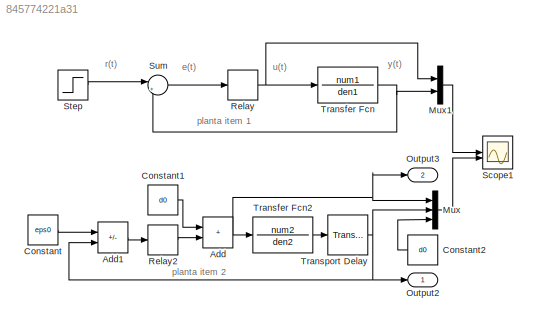
MODEL slx_845774221a31
KIND model
CONFIG AbsTol = auto
CONFIG EnableMultiTasking = off
CONFIG FixedStep = auto
CONFIG MaxStep = auto
CONFIG MinStep = auto
CONFIG RelTol = 1e-10
CONFIG SampleTimeConstraint = Unconstrained
CONFIG SolverName = VariableStepAuto
CONFIG StartTime = 0.0
CONFIG StopTime = 30
BLOCK [Sum] Add
  IconShape = rectangular
BLOCK [Sum] Add1
  IconShape = rectangular
  Inputs = +-
BLOCK [Constant] Constant
  Value = eps0
BLOCK [Constant] Constant1
  Value = d0
BLOCK [Constant] Constant2
  Value = d0
BLOCK [Mux] Mux
  DisplayOption = bar
  Inputs = 3
BLOCK [Mux] Mux1
  DisplayOption = bar
  Inputs = 2
BLOCK [Outport] Output2
BLOCK [Outport] Output3
  Port = 2
BLOCK [Relay] Relay
  OffOutputValue = -d1
  OffSwitchValue = eps1
  OnOutputValue = d1
  OnSwitchValue = eps1
BLOCK [Relay] Relay2
  OffOutputValue = -d2
  OffSwitchValue = eps2
  OnOutputValue = d2
  OnSwitchValue = eps2
BLOCK [Scope] Scope1
  Floating = off
  NumInputPorts = 2
  ScopeSpecificationString = Simulink.scopes.TimeScopeBlockCfg('CurrentConfiguration', extmgr.ConfigurationSet(extmgr.Configuration('Core','General UI',true),extmgr.Configuration('Core','Source UI',true),extmgr.Configuration('Sources','WiredSimulink',true,'DataLoggingVariableName','ScopeData1'),extmgr.Configuration('Visuals','Time Domain',true,'SerializedDisplays',{struct('MinYLimReal','-2.62043','MaxYLimReal','3.93526','YLab...<+2045ch>
BLOCK [Step] Step
  Before = -1
  SampleTime = 1
BLOCK [Sum] Sum
  Inputs = |+-
BLOCK [TransferFcn] Transfer Fcn
  Denominator = den1
  Numerator = num1
BLOCK [TransferFcn] Transfer Fcn2
  Denominator = den2
  Numerator = num2
BLOCK [TransportDelay] Transport Delay
  DelayTime = 0.1
ANNOTATION (root): e(t)
ANNOTATION (root): planta item 1
ANNOTATION (root): planta item 2
ANNOTATION (root): r(t)
ANNOTATION (root): u(t)
ANNOTATION (root): y(t)
LINE Add1:1 -> Relay2:1
NET Add:1 -> Mux:1, Output3:1, Transfer Fcn2:1
LINE Constant1:1 -> Add:1
LINE Constant2:1 -> Mux:3
LINE Constant:1 -> Add1:1
LINE Mux1:1 -> Scope1:1
LINE Mux:1 -> Scope1:2
LINE Relay2:1 -> Add:2
NET Relay:1 -> Mux1:1, Transfer Fcn:1
LINE Step:1 -> Sum:1
LINE Sum:1 -> Relay:1
LINE Transfer Fcn2:1 -> Transport Delay:1
NET Transfer Fcn:1 -> Mux1:2, Sum:2
NET Transport Delay:1 -> Add1:2, Mux:2, Output2:1
note: NET lines group one-source signal fan-out (src -> all destinations, sorted); 1:1 wires keep LINE
